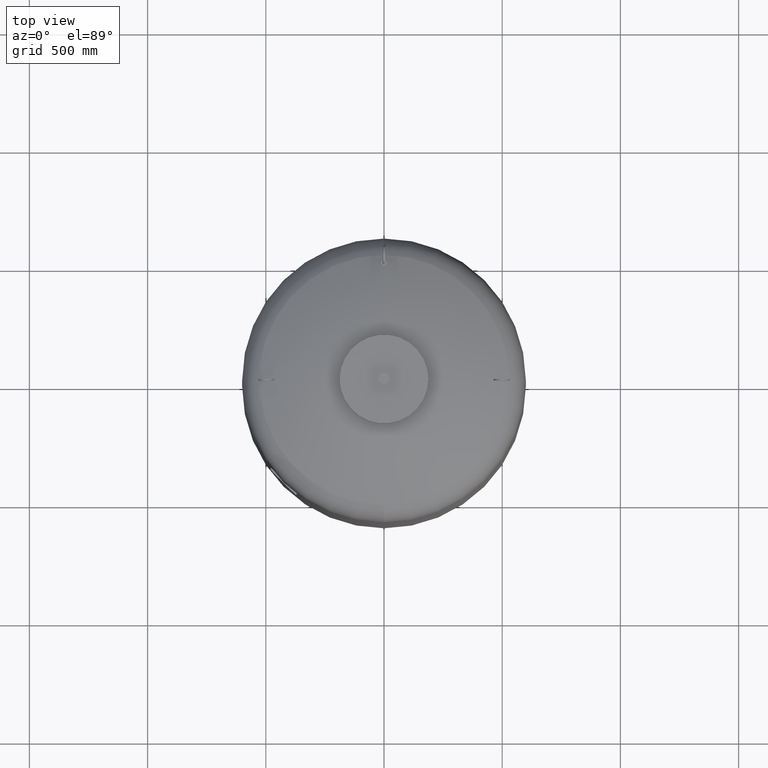
[diagram: clean part render]
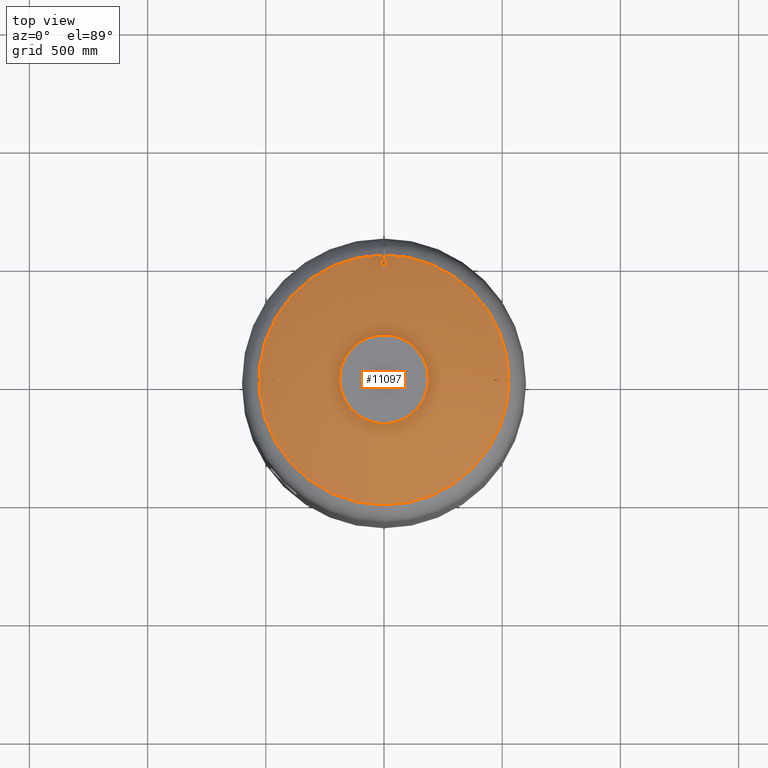
[diagram: same view with one face highlighted and labeled with its STEP entity id]
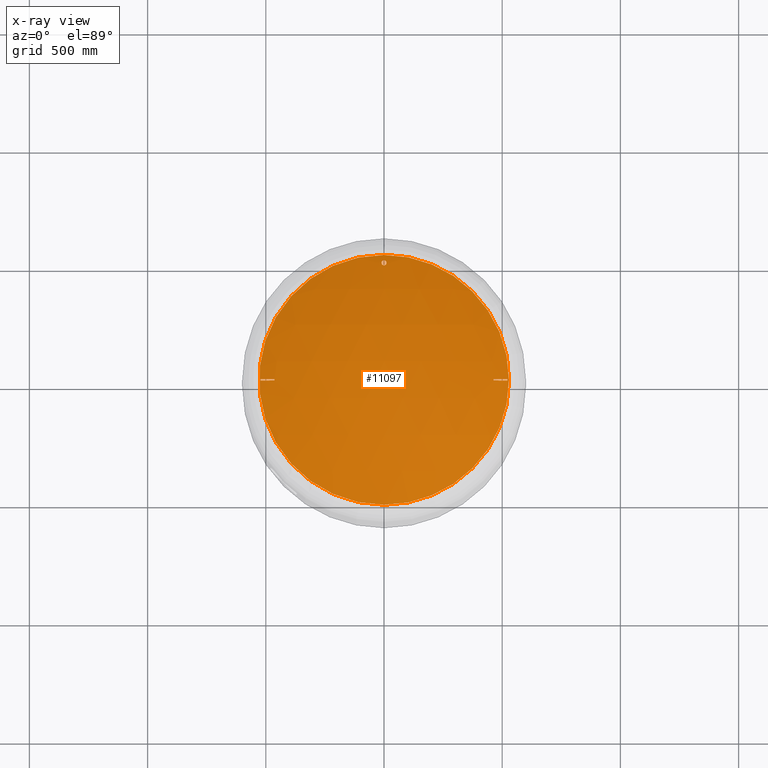
[diagram: x-ray of the same camera — body ghosted, the highlighted face saturated]
A machine part, top view. The second image highlights one B-rep face of the part: STEP entity #11097.
The next image is the same camera in x-ray: the body ghosted, the highlighted face saturated — about 0% of this face is hidden behind the body in this view.
In plain terms, the highlighted spherical surface has radius 1207 mm.
Its self-contained STEP definition (entity closure, byte-faithful):
#10389=CARTESIAN_POINT('',(3.894773E-014,-528.621296296296240,2278.084570483804800));
#10390=VERTEX_POINT('',#10389);
#10406=CARTESIAN_POINT('',(1.036830E-013,528.621296296296240,2278.084570483804800));
#10407=VERTEX_POINT('',#10406);
#10415=CARTESIAN_POINT('',(528.621296296296240,-2.239550E-014,2278.084570483804800));
#10416=VERTEX_POINT('',#10415);
#10417=CARTESIAN_POINT('',(3.410787E-015,-2.239550E-014,2278.084570483804800));
#10418=DIRECTION('',(0.0,0.0,-1.0));
#10419=DIRECTION('',(1.0,0.0,0.0));
#10420=AXIS2_PLACEMENT_3D('',#10417,#10418,#10419);
#10421=CIRCLE('',#10420,528.621296296296240);
#10422=EDGE_CURVE('',#10407,#10416,#10421,.T.);
#10424=CARTESIAN_POINT('',(3.410787E-015,-2.239550E-014,2278.084570483804800));
#10425=DIRECTION('',(0.0,0.0,-1.0));
#10426=DIRECTION('',(1.0,0.0,0.0));
#10427=AXIS2_PLACEMENT_3D('',#10424,#10425,#10426);
#10428=CIRCLE('',#10427,528.621296296296240);
#10429=EDGE_CURVE('',#10416,#10390,#10428,.T.);
#10546=CARTESIAN_POINT('',(-2.007040E-015,505.649999999999860,2288.977681113990900));
#10547=VERTEX_POINT('',#10546);
#10563=CARTESIAN_POINT('',(-1.264167E-015,484.349999999999910,2298.556003782712200));
#10564=VERTEX_POINT('',#10563);
#10571=CARTESIAN_POINT('',(-2.007040E-015,505.649999999999860,2288.977681113990900));
#10572=CARTESIAN_POINT('',(0.665662584297549,505.649999999999860,2288.977681113990900));
#10573=CARTESIAN_POINT('',(1.351770687093055,505.586540768528720,2289.006343822393800));
#10574=CARTESIAN_POINT('',(2.711440963249272,505.322316471514680,2289.125671514436400));
#10575=CARTESIAN_POINT('',(3.385018268838315,505.121615967431920,2289.216307020834800));
#10576=CARTESIAN_POINT('',(4.671659030031331,504.595887700676490,2289.453675611560400));
#10577=CARTESIAN_POINT('',(5.285911664195235,504.270411104392170,2289.600610399233600));
#10578=CARTESIAN_POINT('',(6.417878505985882,503.525973237725340,2289.936594437422200));
#10579=CARTESIAN_POINT('',(6.935591451669527,503.107009891746090,2290.125643340669700));
#10580=CARTESIAN_POINT('',(7.899179737395372,502.177760642695380,2290.544825043460200));
#10581=CARTESIAN_POINT('',(8.368086172563061,501.627357286810370,2290.793043409988500));
#10582=CARTESIAN_POINT('',(9.188061671035127,500.433806541515650,2291.331089151719900));
#10583=CARTESIAN_POINT('',(9.539219073899449,499.790709135051770,2291.620892770933100));
#10584=CARTESIAN_POINT('',(10.100224561864263,498.454426017124770,2292.222810133959700));
#10585=CARTESIAN_POINT('',(10.310462392525917,497.760351114898870,2292.535323620084000));
#10586=CARTESIAN_POINT('',(10.585380396556634,496.369268012084210,2293.161397323186500));
#10587=CARTESIAN_POINT('',(10.650000000000000,495.672249771665920,2293.474961828123900));
#10588=CARTESIAN_POINT('',(10.650000000000000,494.328136578031490,2294.079385679025100));
#10589=CARTESIAN_POINT('',(10.585453694089722,493.631410911690520,2294.392563213996700));
#10590=CARTESIAN_POINT('',(10.310736765036932,492.240729558734190,2295.017401333808700));
#10591=CARTESIAN_POINT('',(10.100625147679906,491.546764270494350,2295.329066489736800));
#10592=CARTESIAN_POINT('',(9.539857037879536,490.210574780593110,2295.928918118605900));
#10593=CARTESIAN_POINT('',(9.188808647865375,489.567459190703400,2296.217505560420200));
#10594=CARTESIAN_POINT('',(8.369020497877592,488.373824638455520,2296.752944631033200));
#10595=CARTESIAN_POINT('',(7.900192687897295,487.823356474835290,2296.999774688893900));
#10596=CARTESIAN_POINT('',(6.936540506419655,486.893778895747120,2297.416486438550200));
#10597=CARTESIAN_POINT('',(6.418662963042111,486.474599944024530,2297.604341560041600));
#10598=CARTESIAN_POINT('',(5.286383442477856,485.729841940405380,2297.938035283821600));
#10599=CARTESIAN_POINT('',(4.671983453209442,485.404260841614930,2298.083876063063600));
#10600=CARTESIAN_POINT('',(3.385112822109917,484.878406691485680,2298.319396709681300));
#10601=CARTESIAN_POINT('',(2.711455124781848,484.677684778344370,2298.409278534069900));
#10602=CARTESIAN_POINT('',(1.351712007087142,484.413449330400060,2298.527596291778100));
#10603=CARTESIAN_POINT('',(0.665611636080549,484.349999999999910,2298.556003782712200));
#10604=CARTESIAN_POINT('',(-1.264167E-015,484.349999999999910,2298.556003782712200));
#10605=B_SPLINE_CURVE_WITH_KNOTS('',3,(#10571,#10572,#10573,#10574,#10575,#10576,#10577,#10578,#10579,#10580,#10581,#10582,#10583,#10584,#10585,#10586,#10587,#10588,#10589,#10590,#10591,#10592,#10593,#10594,#10595,#10596,#10597,#10598,#10599,#10600,#10601,#10602,#10603,#10604),.UNSPECIFIED.,.F.,.U.,(4,2,2,2,2,2,2,2,2,2,2,2,2,2,2,2,4),(0.0,1.996987752892652,3.993975505785304,5.990963258677956,7.987951011570608,10.199226399313966,12.410501787057324,14.621777174800682,16.833052562544040,19.043057104816825,21.253061647089609,23.463066189362394,25.673070731635178,27.669905639876831,29.666740548118483,31.663575456360135,33.660410364601788),.UNSPECIFIED.);
#10606=EDGE_CURVE('',#10547,#10564,#10605,.T.);
#10617=CARTESIAN_POINT('',(-1.264167E-015,484.349999999999910,2298.556003782712200));
#10618=CARTESIAN_POINT('',(-0.665611636080552,484.349999999999910,2298.556003782712200));
#10619=CARTESIAN_POINT('',(-1.351712007087143,484.413449330400060,2298.527596291778100));
#10620=CARTESIAN_POINT('',(-2.711455124781850,484.677684778344370,2298.409278534069900));
#10621=CARTESIAN_POINT('',(-3.385112822109919,484.878406691485680,2298.319396709681300));
#10622=CARTESIAN_POINT('',(-4.671983453209444,485.404260841614930,2298.083876063063600));
#10623=CARTESIAN_POINT('',(-5.286383442477860,485.729841940405380,2297.938035283821600));
#10624=CARTESIAN_POINT('',(-6.418662963042113,486.474599944024530,2297.604341560041600));
#10625=CARTESIAN_POINT('',(-6.936540506419650,486.893778895747120,2297.416486438550200));
#10626=CARTESIAN_POINT('',(-7.900192687897292,487.823356474835290,2296.999774688893900));
#10627=CARTESIAN_POINT('',(-8.369020497877603,488.373824638455520,2296.752944631033600));
#10628=CARTESIAN_POINT('',(-9.188808647865416,489.567459190703400,2296.217505560420200));
#10629=CARTESIAN_POINT('',(-9.539857037879596,490.210574780593220,2295.928918118605900));
#10630=CARTESIAN_POINT('',(-10.100625147679949,491.546764270494460,2295.329066489736800));
#10631=CARTESIAN_POINT('',(-10.310736765036959,492.240729558734240,2295.017401333808700));
#10632=CARTESIAN_POINT('',(-10.585453694089725,493.631410911690520,2294.392563213996700));
#10633=CARTESIAN_POINT('',(-10.650000000000004,494.328136578031490,2294.079385679025100));
#10634=CARTESIAN_POINT('',(-10.650000000000004,495.672249771665860,2293.474961828123900));
#10635=CARTESIAN_POINT('',(-10.585380396556637,496.369268012084210,2293.161397323186500));
#10636=CARTESIAN_POINT('',(-10.310462392525912,497.760351114898920,2292.535323620084000));
#10637=CARTESIAN_POINT('',(-10.100224561864266,498.454426017124770,2292.222810133959700));
#10638=CARTESIAN_POINT('',(-9.539219073899460,499.790709135051770,2291.620892770933100));
#10639=CARTESIAN_POINT('',(-9.188061671035145,500.433806541515590,2291.331089151719900));
#10640=CARTESIAN_POINT('',(-8.368086172563105,501.627357286810200,2290.793043409988500));
#10641=CARTESIAN_POINT('',(-7.899179737395371,502.177760642695380,2290.544825043460600));
#10642=CARTESIAN_POINT('',(-6.935591451669527,503.107009891746090,2290.125643340669700));
#10643=CARTESIAN_POINT('',(-6.417878505985903,503.525973237725280,2289.936594437422200));
#10644=CARTESIAN_POINT('',(-5.285911664195240,504.270411104392170,2289.600610399233600));
#10645=CARTESIAN_POINT('',(-4.671659030031345,504.595887700676490,2289.453675611560400));
#10646=CARTESIAN_POINT('',(-3.385018268838326,505.121615967431920,2289.216307020834800));
#10647=CARTESIAN_POINT('',(-2.711440963249284,505.322316471514680,2289.125671514436400));
#10648=CARTESIAN_POINT('',(-1.351770687093066,505.586540768528720,2289.006343822393800));
#10649=CARTESIAN_POINT('',(-0.665662584297557,505.649999999999860,2288.977681113990900));
#10650=CARTESIAN_POINT('',(-2.007040E-015,505.649999999999860,2288.977681113990900));
#10651=B_SPLINE_CURVE_WITH_KNOTS('',3,(#10617,#10618,#10619,#10620,#10621,#10622,#10623,#10624,#10625,#10626,#10627,#10628,#10629,#10630,#10631,#10632,#10633,#10634,#10635,#10636,#10637,#10638,#10639,#10640,#10641,#10642,#10643,#10644,#10645,#10646,#10647,#10648,#10649,#10650),.UNSPECIFIED.,.F.,.U.,(4,2,2,2,2,2,2,2,2,2,2,2,2,2,2,2,4),(33.660410364601788,35.657245272843440,37.654080181085092,39.650915089326745,41.647749997568390,43.857754539841181,46.067759082113966,48.277763624386751,50.487768166659535,52.699043554402870,54.910318942146205,57.121594329889540,59.332869717632875,61.329857470525539,63.326845223418196,65.323832976310854,67.320820729203518),.UNSPECIFIED.);
#10652=EDGE_CURVE('',#10564,#10547,#10651,.T.);
#10680=CARTESIAN_POINT('',(-463.451600218966230,-3.000000000000292,2307.474142479079100));
#10681=VERTEX_POINT('',#10680);
#10682=CARTESIAN_POINT('',(-521.618748390259610,-2.999999999999862,2281.464000933324300));
#10683=VERTEX_POINT('',#10682);
#10684=CARTESIAN_POINT('',(1.015543E-013,-3.000000000004973,1193.0));
#10685=DIRECTION('',(0.0,-1.0,0.0));
#10686=DIRECTION('',(0.0,0.0,1.0));
#10687=AXIS2_PLACEMENT_3D('',#10684,#10685,#10686);
#10688=CIRCLE('',#10687,1206.996271742378000);
#10689=EDGE_CURVE('',#10681,#10683,#10688,.T.);
#10732=CARTESIAN_POINT('',(-463.451600218966290,2.999999999999727,2307.474142479079500));
#10733=VERTEX_POINT('',#10732);
#10734=CARTESIAN_POINT('',(-143.673995061822890,7.801844E-013,1153.196972395376000));
#10735=DIRECTION('',(0.963701753162816,-6.720348E-015,0.266981143436978));
#10736=DIRECTION('',(-0.266981143436977,0.0,0.963701753162815));
#10737=AXIS2_PLACEMENT_3D('',#10734,#10735,#10736);
#10738=CIRCLE('',#10737,1197.757280143385700);
#10739=EDGE_CURVE('',#10733,#10681,#10738,.T.);
#10782=CARTESIAN_POINT('',(-521.618748390259730,3.000000000000095,2281.464000933324300));
#10783=VERTEX_POINT('',#10782);
#10784=CARTESIAN_POINT('',(-204.387205511080400,1.203566E-012,1136.377160358846400));
#10785=DIRECTION('',(-0.963701753162815,6.720348E-015,-0.266981143436977));
#10786=DIRECTION('',(0.266981143436977,0.0,-0.963701753162815));
#10787=AXIS2_PLACEMENT_3D('',#10784,#10785,#10786);
#10788=CIRCLE('',#10787,1188.220823018324600);
#10789=EDGE_CURVE('',#10683,#10783,#10788,.T.);
#10814=CARTESIAN_POINT('',(1.458865E-013,2.999999999995042,1193.0));
#10815=DIRECTION('',(0.0,1.0,0.0));
#10816=DIRECTION('',(0.0,0.0,-1.0));
#10817=AXIS2_PLACEMENT_3D('',#10814,#10815,#10816);
#10818=CIRCLE('',#10817,1206.996271742378000);
#10819=EDGE_CURVE('',#10783,#10733,#10818,.T.);
#10854=CARTESIAN_POINT('',(463.451600218966350,2.999999999999727,2307.474142479080000));
#10855=VERTEX_POINT('',#10854);
#10856=CARTESIAN_POINT('',(521.618748390259730,3.000000000000095,2281.464000933324300));
#10857=VERTEX_POINT('',#10856);
#10858=CARTESIAN_POINT('',(1.015543E-013,2.999999999995042,1193.0));
#10859=DIRECTION('',(0.0,1.0,0.0));
#10860=DIRECTION('',(0.0,0.0,-1.0));
#10861=AXIS2_PLACEMENT_3D('',#10858,#10859,#10860);
#10862=CIRCLE('',#10861,1206.996271742378000);
#10863=EDGE_CURVE('',#10855,#10857,#10862,.T.);
#10906=CARTESIAN_POINT('',(463.451600218966230,-3.000000000000292,2307.474142479079100));
#10907=VERTEX_POINT('',#10906);
#10908=CARTESIAN_POINT('',(143.673995061822890,7.801844E-013,1153.196972395376000));
#10909=DIRECTION('',(-0.963701753162816,-6.720348E-015,0.266981143436978));
#10910=DIRECTION('',(-0.266981143436977,0.0,-0.963701753162815));
#10911=AXIS2_PLACEMENT_3D('',#10908,#10909,#10910);
#10912=CIRCLE('',#10911,1197.757280143385700);
#10913=EDGE_CURVE('',#10907,#10855,#10912,.T.);
#10977=CARTESIAN_POINT('',(521.618748390259610,-2.999999999999862,2281.464000933324300));
#10978=VERTEX_POINT('',#10977);
#10979=CARTESIAN_POINT('',(204.387205511080450,1.203566E-012,1136.377160358846400));
#10980=DIRECTION('',(0.963701753162815,6.720348E-015,-0.266981143436977));
#10981=DIRECTION('',(0.266981143436977,0.0,0.963701753162815));
#10982=AXIS2_PLACEMENT_3D('',#10979,#10980,#10981);
#10983=CIRCLE('',#10982,1188.220823018324600);
#10984=EDGE_CURVE('',#10857,#10978,#10983,.T.);
#11048=CARTESIAN_POINT('',(1.458865E-013,-3.000000000004973,1193.0));
#11049=DIRECTION('',(0.0,-1.0,0.0));
#11050=DIRECTION('',(0.0,0.0,1.0));
#11051=AXIS2_PLACEMENT_3D('',#11048,#11049,#11050);
#11052=CIRCLE('',#11051,1206.996271742378000);
#11053=EDGE_CURVE('',#10978,#10907,#11052,.T.);
#11065=CARTESIAN_POINT('',(1.237204E-013,-2.217223E-013,1193.0));
#11066=DIRECTION('',(0.0,-1.0,0.0));
#11067=DIRECTION('',(-1.0,0.0,0.0));
#11068=AXIS2_PLACEMENT_3D('',#11065,#11066,#11067);
#11069=SPHERICAL_SURFACE('',#11068,1207.000000000000200);
#11070=ORIENTED_EDGE('',*,*,#10606,.T.);
#11071=ORIENTED_EDGE('',*,*,#10652,.T.);
#11072=EDGE_LOOP('',(#11070,#11071));
#11073=FACE_OUTER_BOUND('',#11072,.T.);
#11074=ORIENTED_EDGE('',*,*,#10739,.T.);
#11075=ORIENTED_EDGE('',*,*,#10689,.T.);
#11076=ORIENTED_EDGE('',*,*,#10789,.T.);
#11077=ORIENTED_EDGE('',*,*,#10819,.T.);
#11078=EDGE_LOOP('',(#11074,#11075,#11076,#11077));
#11079=FACE_BOUND('',#11078,.T.);
#11080=ORIENTED_EDGE('',*,*,#10913,.T.);
#11081=ORIENTED_EDGE('',*,*,#10863,.T.);
#11082=ORIENTED_EDGE('',*,*,#10984,.T.);
#11083=ORIENTED_EDGE('',*,*,#11053,.T.);
#11084=EDGE_LOOP('',(#11080,#11081,#11082,#11083));
#11085=FACE_BOUND('',#11084,.T.);
#11086=ORIENTED_EDGE('',*,*,#10429,.F.);
#11087=ORIENTED_EDGE('',*,*,#10422,.F.);
#11088=CARTESIAN_POINT('',(3.410787E-015,-2.239550E-014,2278.084570483804800));
#11089=DIRECTION('',(0.0,0.0,-1.0));
#11090=DIRECTION('',(1.0,0.0,0.0));
#11091=AXIS2_PLACEMENT_3D('',#11088,#11089,#11090);
#11092=CIRCLE('',#11091,528.621296296296240);
#11093=EDGE_CURVE('',#10390,#10407,#11092,.T.);
#11094=ORIENTED_EDGE('',*,*,#11093,.F.);
#11095=EDGE_LOOP('',(#11086,#11087,#11094));
#11096=FACE_BOUND('',#11095,.T.);
#11097=ADVANCED_FACE('',(#11073,#11079,#11085,#11096),#11069,.T.);